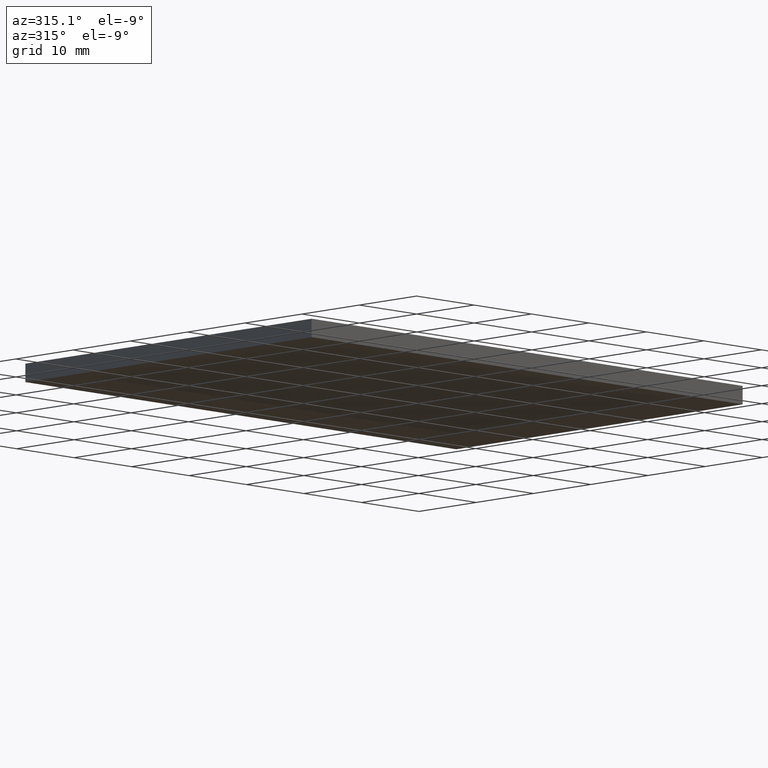
[diagram: clean part render]
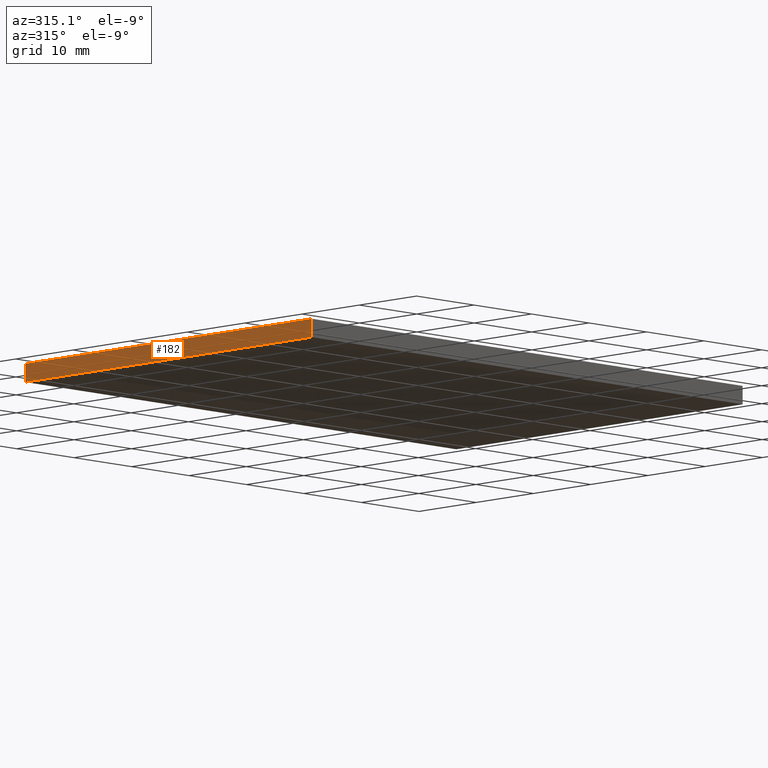
[diagram: same view with one face highlighted and labeled with its STEP entity id]
A machine part, auxiliary view. The second image highlights one B-rep face of the part: STEP entity #182.
In plain terms, the highlighted planar face has unit normal (1, 0, -0).
Its self-contained STEP definition (entity closure, byte-faithful):
#2 = VECTOR ( 'NONE', #85, 1000.000000000000000 ) ;
#5 = DIRECTION ( 'NONE',  ( -0.0000000000000000000, -0.0000000000000000000, -1.000000000000000000 ) ) ;
#14 = CARTESIAN_POINT ( 'NONE',  ( 179.7299678845673700, 148.1264836690531300, 2.299999999999999800 ) ) ;
#24 = EDGE_CURVE ( 'NONE', #153, #89, #42, .T. ) ;
#25 = EDGE_LOOP ( 'NONE', ( #197, #119, #165, #70 ) ) ;
#27 = FACE_OUTER_BOUND ( 'NONE', #25, .T. ) ;
#40 = EDGE_CURVE ( 'NONE', #76, #194, #108, .T. ) ;
#42 = LINE ( 'NONE', #143, #2 ) ;
#46 = CARTESIAN_POINT ( 'NONE',  ( 179.7299678845673700, 148.1264836690531300, 0.0000000000000000000 ) ) ;
#59 = LINE ( 'NONE', #62, #83 ) ;
#62 = CARTESIAN_POINT ( 'NONE',  ( 179.7299678845673700, 148.1264836690531300, 2.299999999999999800 ) ) ;
#63 = DIRECTION ( 'NONE',  ( -0.0000000000000000000, 0.0000000000000000000, -1.000000000000000000 ) ) ;
#64 = AXIS2_PLACEMENT_3D ( 'NONE', #14, #132, #63 ) ;
#70 = ORIENTED_EDGE ( 'NONE', *, *, #90, .T. ) ;
#76 = VERTEX_POINT ( 'NONE', #46 ) ;
#83 = VECTOR ( 'NONE', #5, 1000.000000000000000 ) ;
#85 = DIRECTION ( 'NONE',  ( 0.0000000000000000000, -1.000000000000000000, 0.0000000000000000000 ) ) ;
#89 = VERTEX_POINT ( 'NONE', #102 ) ;
#90 = EDGE_CURVE ( 'NONE', #153, #76, #59, .T. ) ;
#92 = VECTOR ( 'NONE', #136, 1000.000000000000000 ) ;
#94 = CARTESIAN_POINT ( 'NONE',  ( 179.7299678845673700, 148.1264836690531300, 0.0000000000000000000 ) ) ;
#102 = CARTESIAN_POINT ( 'NONE',  ( 179.7299678845673700, 98.12648366905320100, 2.299999999999999800 ) ) ;
#108 = LINE ( 'NONE', #94, #129 ) ;
#110 = LINE ( 'NONE', #134, #92 ) ;
#119 = ORIENTED_EDGE ( 'NONE', *, *, #198, .F. ) ;
#122 = CARTESIAN_POINT ( 'NONE',  ( 179.7299678845673700, 148.1264836690531300, 2.299999999999999800 ) ) ;
#129 = VECTOR ( 'NONE', #176, 1000.000000000000000 ) ;
#132 = DIRECTION ( 'NONE',  ( 1.000000000000000000, 0.0000000000000000000, -0.0000000000000000000 ) ) ;
#134 = CARTESIAN_POINT ( 'NONE',  ( 179.7299678845673700, 98.12648366905320100, 2.299999999999999800 ) ) ;
#136 = DIRECTION ( 'NONE',  ( -0.0000000000000000000, -0.0000000000000000000, -1.000000000000000000 ) ) ;
#142 = CARTESIAN_POINT ( 'NONE',  ( 179.7299678845673700, 98.12648366905320100, 0.0000000000000000000 ) ) ;
#143 = CARTESIAN_POINT ( 'NONE',  ( 179.7299678845673700, 148.1264836690531300, 2.299999999999999800 ) ) ;
#153 = VERTEX_POINT ( 'NONE', #122 ) ;
#165 = ORIENTED_EDGE ( 'NONE', *, *, #24, .F. ) ;
#176 = DIRECTION ( 'NONE',  ( 0.0000000000000000000, -1.000000000000000000, 0.0000000000000000000 ) ) ;
#182 = ADVANCED_FACE ( 'NONE', ( #27 ), #195, .F. ) ;
#194 = VERTEX_POINT ( 'NONE', #142 ) ;
#195 = PLANE ( 'NONE',  #64 ) ;
#197 = ORIENTED_EDGE ( 'NONE', *, *, #40, .T. ) ;
#198 = EDGE_CURVE ( 'NONE', #89, #194, #110, .T. ) ;